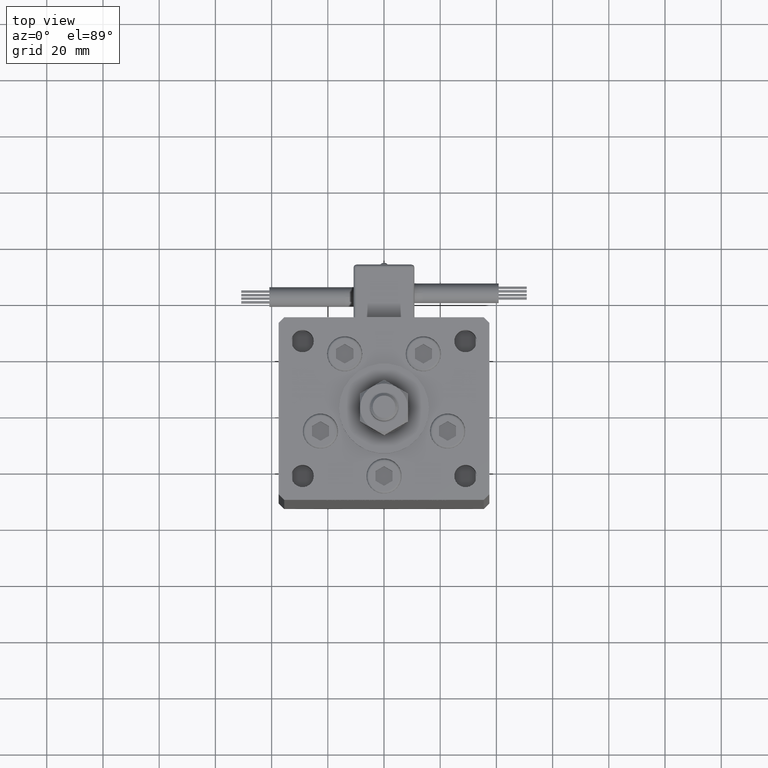
[diagram: clean part render]
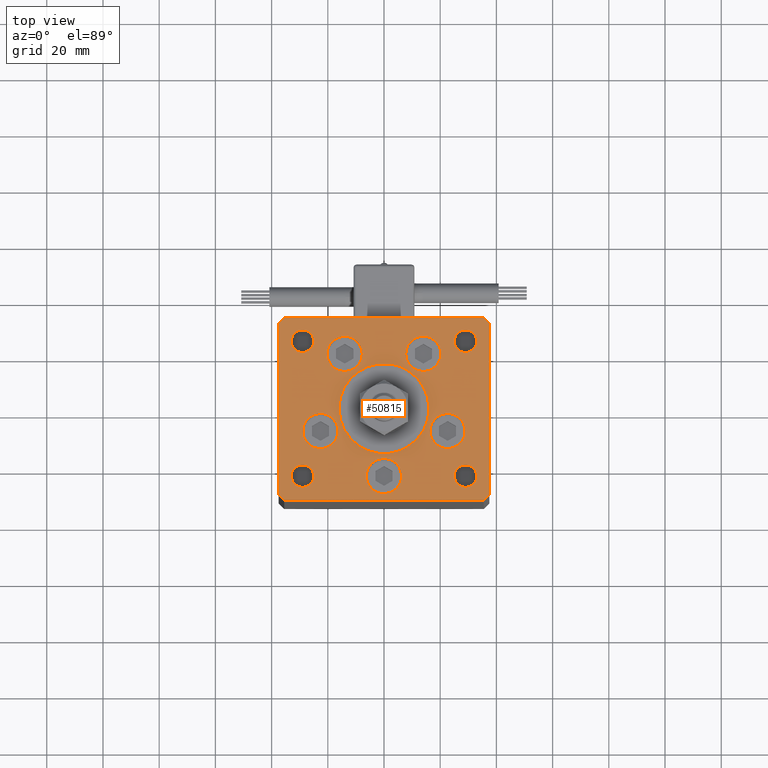
[diagram: same view with one face highlighted and labeled with its STEP entity id]
A machine part, top view. The second image highlights one B-rep face of the part: STEP entity #50815.
In plain terms, the highlighted planar face has unit normal (0, 0, 1).
Its self-contained STEP definition (entity closure, byte-faithful):
#5 = CARTESIAN_POINT ( 'NONE',  ( 0.000000000000000000, -6.938893903907228378E-15, 0.000000000000000000 ) ) ;
#13 = DIRECTION ( 'NONE',  ( 0.000000000000000000, 0.000000000000000000, 1.000000000000000000 ) ) ;
#26 = EDGE_CURVE ( 'NONE', #44111, #25029, #22153, .T. ) ;
#224 = CARTESIAN_POINT ( 'NONE',  ( 33.00000000000000000, -23.99999999999999645, 0.000000000000000000 ) ) ;
#312 = DIRECTION ( 'NONE',  ( 2.275047181608926165E-16, -1.000000000000000000, 0.000000000000000000 ) ) ;
#350 = EDGE_CURVE ( 'NONE', #43454, #55084, #13889, .T. ) ;
#573 = DIRECTION ( 'NONE',  ( -1.000000000000000000, 0.000000000000000000, 0.000000000000000000 ) ) ;
#592 = LINE ( 'NONE', #48820, #26831 ) ;
#898 = VECTOR ( 'NONE', #44611, 1000.000000000000000 ) ;
#1056 = CARTESIAN_POINT ( 'NONE',  ( -28.87741699796953654, -8.000000000000000000, 0.000000000000000000 ) ) ;
#1372 = ORIENTED_EDGE ( 'NONE', *, *, #17578, .F. ) ;
#1414 = VERTEX_POINT ( 'NONE', #1056 ) ;
#1442 = FACE_BOUND ( 'NONE', #40900, .T. ) ;
#2496 = VERTEX_POINT ( 'NONE', #8784 ) ;
#3210 = EDGE_CURVE ( 'NONE', #10264, #36532, #43233, .T. ) ;
#3530 = CARTESIAN_POINT ( 'NONE',  ( 0.000000000000000000, -24.00000000000001066, 0.000000000000000000 ) ) ;
#3818 = EDGE_LOOP ( 'NONE', ( #38268, #41297 ) ) ;
#4458 = AXIS2_PLACEMENT_3D ( 'NONE', #32172, #18955, #19236 ) ;
#4530 = CIRCLE ( 'NONE', #8211, 4.000000000000000000 ) ;
#4836 = CARTESIAN_POINT ( 'NONE',  ( -35.50000000000000711, 32.49999999999997868, 0.000000000000000000 ) ) ;
#4891 = EDGE_CURVE ( 'NONE', #25029, #44111, #20325, .T. ) ;
#5251 = ORIENTED_EDGE ( 'NONE', *, *, #6937, .T. ) ;
#5592 = CARTESIAN_POINT ( 'NONE',  ( -20.24106857963324302, 19.50000000000000000, 0.000000000000000000 ) ) ;
#5602 = CARTESIAN_POINT ( 'NONE',  ( -25.00000000000000000, 24.00000000000000711, 0.000000000000000000 ) ) ;
#5721 = DIRECTION ( 'NONE',  ( 1.000000000000000000, 0.000000000000000000, 0.000000000000000000 ) ) ;
#5991 = EDGE_LOOP ( 'NONE', ( #19318, #42592 ) ) ;
#6595 = AXIS2_PLACEMENT_3D ( 'NONE', #31028, #13507, #573 ) ;
#6823 = CARTESIAN_POINT ( 'NONE',  ( -35.50000000000001421, -32.50000000000000711, 0.000000000000000000 ) ) ;
#6937 = EDGE_CURVE ( 'NONE', #12929, #32363, #592, .T. ) ;
#7046 = CARTESIAN_POINT ( 'NONE',  ( 28.87741699796953654, -8.000000000000000000, 0.000000000000000000 ) ) ;
#7201 = DIRECTION ( 'NONE',  ( -0.000000000000000000, -0.000000000000000000, -1.000000000000000000 ) ) ;
#7346 = DIRECTION ( 'NONE',  ( 0.000000000000000000, 0.000000000000000000, 1.000000000000000000 ) ) ;
#7469 = AXIS2_PLACEMENT_3D ( 'NONE', #54271, #36790, #20120 ) ;
#7668 = EDGE_CURVE ( 'NONE', #54527, #23390, #25989, .T. ) ;
#7758 = CARTESIAN_POINT ( 'NONE',  ( 29.00000000000000355, -23.99999999999999645, 0.000000000000000000 ) ) ;
#7941 = CIRCLE ( 'NONE', #29037, 4.000000000000000000 ) ;
#8211 = AXIS2_PLACEMENT_3D ( 'NONE', #54393, #40914, #27437 ) ;
#8640 = VERTEX_POINT ( 'NONE', #26042 ) ;
#8784 = CARTESIAN_POINT ( 'NONE',  ( 35.50000000000001421, -32.49999999999992184, 0.000000000000000000 ) ) ;
#8914 = DIRECTION ( 'NONE',  ( 1.000000000000000000, 0.000000000000000000, 0.000000000000000000 ) ) ;
#9049 = CARTESIAN_POINT ( 'NONE',  ( -33.00000000000000000, 24.00000000000000711, 0.000000000000000000 ) ) ;
#9223 = FACE_BOUND ( 'NONE', #3818, .T. ) ;
#9593 = ORIENTED_EDGE ( 'NONE', *, *, #26, .T. ) ;
#9778 = FACE_BOUND ( 'NONE', #26485, .T. ) ;
#9878 = EDGE_CURVE ( 'NONE', #53461, #8640, #39730, .T. ) ;
#9891 = DIRECTION ( 'NONE',  ( -1.000000000000000000, -1.954618001100627573E-16, 0.000000000000000000 ) ) ;
#9986 = VERTEX_POINT ( 'NONE', #48291 ) ;
#10149 = CARTESIAN_POINT ( 'NONE',  ( 22.62741699796953299, -8.000000000000000000, 0.000000000000000000 ) ) ;
#10264 = VERTEX_POINT ( 'NONE', #50522 ) ;
#10314 = CARTESIAN_POINT ( 'NONE',  ( -22.62741699796953299, -8.000000000000000000, 0.000000000000000000 ) ) ;
#10344 = FACE_BOUND ( 'NONE', #32317, .T. ) ;
#10733 = LINE ( 'NONE', #15037, #41810 ) ;
#10783 = CARTESIAN_POINT ( 'NONE',  ( 7.741068579633241242, 19.50000000000000000, 0.000000000000000000 ) ) ;
#11125 = ORIENTED_EDGE ( 'NONE', *, *, #4891, .T. ) ;
#11481 = CIRCLE ( 'NONE', #44450, 6.250000000000001776 ) ;
#11850 = ORIENTED_EDGE ( 'NONE', *, *, #20821, .F. ) ;
#12266 = DIRECTION ( 'NONE',  ( 1.000000000000000000, 1.172770800660376149E-15, 0.000000000000000000 ) ) ;
#12800 = CARTESIAN_POINT ( 'NONE',  ( -37.50000000000000000, -30.50000000000004263, 0.000000000000000000 ) ) ;
#12929 = VERTEX_POINT ( 'NONE', #15988 ) ;
#13046 = CARTESIAN_POINT ( 'NONE',  ( 35.50000000000000000, 32.49999999999999289, 0.000000000000000000 ) ) ;
#13058 = EDGE_CURVE ( 'NONE', #37803, #2496, #51565, .T. ) ;
#13213 = AXIS2_PLACEMENT_3D ( 'NONE', #29023, #7201, #24713 ) ;
#13257 = CIRCLE ( 'NONE', #55389, 6.250000000000001776 ) ;
#13336 = DIRECTION ( 'NONE',  ( 1.000000000000000000, 0.000000000000000000, 0.000000000000000000 ) ) ;
#13507 = DIRECTION ( 'NONE',  ( -0.000000000000000000, -0.000000000000000000, -1.000000000000000000 ) ) ;
#13574 = EDGE_LOOP ( 'NONE', ( #52699, #47911 ) ) ;
#13801 = DIRECTION ( 'NONE',  ( -0.7071067811865524577, 0.7071067811865426878, 0.000000000000000000 ) ) ;
#13889 = CIRCLE ( 'NONE', #7469, 6.250000000000001776 ) ;
#14063 = CARTESIAN_POINT ( 'NONE',  ( 20.24106857963324302, 19.50000000000000000, 0.000000000000000000 ) ) ;
#14080 = PLANE ( 'NONE',  #4458 ) ;
#14113 = EDGE_CURVE ( 'NONE', #44411, #45833, #4530, .T. ) ;
#14357 = EDGE_CURVE ( 'NONE', #2496, #17856, #31424, .T. ) ;
#14365 = FACE_OUTER_BOUND ( 'NONE', #54709, .T. ) ;
#14574 = ORIENTED_EDGE ( 'NONE', *, *, #29373, .F. ) ;
#15037 = CARTESIAN_POINT ( 'NONE',  ( 35.50000000000000000, 32.49999999999999289, 0.000000000000000000 ) ) ;
#15200 = ORIENTED_EDGE ( 'NONE', *, *, #15453, .F. ) ;
#15298 = VERTEX_POINT ( 'NONE', #224 ) ;
#15352 = VECTOR ( 'NONE', #33247, 1000.000000000000000 ) ;
#15453 = EDGE_CURVE ( 'NONE', #49246, #1414, #41218, .T. ) ;
#15988 = CARTESIAN_POINT ( 'NONE',  ( 37.50000000000000711, 30.50000000000001421, 0.000000000000000000 ) ) ;
#16485 = AXIS2_PLACEMENT_3D ( 'NONE', #38630, #56122, #16824 ) ;
#16824 = DIRECTION ( 'NONE',  ( 1.000000000000000000, 0.000000000000000000, 0.000000000000000000 ) ) ;
#16955 = DIRECTION ( 'NONE',  ( 0.000000000000000000, 0.000000000000000000, 1.000000000000000000 ) ) ;
#17131 = ORIENTED_EDGE ( 'NONE', *, *, #22420, .T. ) ;
#17387 = DIRECTION ( 'NONE',  ( 0.7071067811865512365, -0.7071067811865439090, 0.000000000000000000 ) ) ;
#17531 = CARTESIAN_POINT ( 'NONE',  ( 0.000000000000000000, -24.00000000000001066, 0.000000000000000000 ) ) ;
#17578 = EDGE_CURVE ( 'NONE', #23390, #54527, #48643, .T. ) ;
#17750 = AXIS2_PLACEMENT_3D ( 'NONE', #52745, #31229, #26914 ) ;
#17835 = AXIS2_PLACEMENT_3D ( 'NONE', #43009, #38132, #20056 ) ;
#17856 = VERTEX_POINT ( 'NONE', #19911 ) ;
#17888 = ORIENTED_EDGE ( 'NONE', *, *, #14113, .F. ) ;
#17960 = DIRECTION ( 'NONE',  ( -0.000000000000000000, -0.000000000000000000, -1.000000000000000000 ) ) ;
#18193 = DIRECTION ( 'NONE',  ( 0.000000000000000000, 0.000000000000000000, 1.000000000000000000 ) ) ;
#18609 = CARTESIAN_POINT ( 'NONE',  ( 33.00000000000000000, 24.00000000000000355, 0.000000000000000000 ) ) ;
#18915 = AXIS2_PLACEMENT_3D ( 'NONE', #21629, #38836, #43154 ) ;
#18941 = CARTESIAN_POINT ( 'NONE',  ( -7.741068579633241242, 19.50000000000000000, 0.000000000000000000 ) ) ;
#18955 = DIRECTION ( 'NONE',  ( -0.000000000000000000, 0.000000000000000000, 1.000000000000000000 ) ) ;
#18998 = ORIENTED_EDGE ( 'NONE', *, *, #13058, .T. ) ;
#19236 = DIRECTION ( 'NONE',  ( 1.000000000000000000, 0.000000000000000000, 0.000000000000000000 ) ) ;
#19318 = ORIENTED_EDGE ( 'NONE', *, *, #3210, .F. ) ;
#19322 = DIRECTION ( 'NONE',  ( 0.000000000000000000, 0.000000000000000000, 1.000000000000000000 ) ) ;
#19492 = EDGE_CURVE ( 'NONE', #45833, #44411, #38648, .T. ) ;
#19504 = AXIS2_PLACEMENT_3D ( 'NONE', #5, #30726, #5721 ) ;
#19592 = CIRCLE ( 'NONE', #25084, 6.250000000000000000 ) ;
#19904 = CIRCLE ( 'NONE', #51997, 16.00000000000000355 ) ;
#19911 = CARTESIAN_POINT ( 'NONE',  ( 37.50000000000000711, -30.49999999999992895, 0.000000000000000000 ) ) ;
#20056 = DIRECTION ( 'NONE',  ( 1.000000000000000000, 0.000000000000000000, 0.000000000000000000 ) ) ;
#20120 = DIRECTION ( 'NONE',  ( 1.000000000000000000, 0.000000000000000000, 0.000000000000000000 ) ) ;
#20325 = CIRCLE ( 'NONE', #6595, 4.000000000000000000 ) ;
#20746 = CARTESIAN_POINT ( 'NONE',  ( -6.250000000000000000, -24.00000000000001066, 0.000000000000000000 ) ) ;
#20821 = EDGE_CURVE ( 'NONE', #8640, #53461, #55178, .T. ) ;
#21171 = DIRECTION ( 'NONE',  ( 0.000000000000000000, 0.000000000000000000, 1.000000000000000000 ) ) ;
#21256 = CARTESIAN_POINT ( 'NONE',  ( -32.99999999999999289, -23.99999999999999645, 0.000000000000000000 ) ) ;
#21282 = CARTESIAN_POINT ( 'NONE',  ( -37.50000000000000000, -30.50000000000004263, 0.000000000000000000 ) ) ;
#21629 = CARTESIAN_POINT ( 'NONE',  ( -13.99106857963324124, 19.50000000000000000, 0.000000000000000000 ) ) ;
#21740 = DIRECTION ( 'NONE',  ( 1.000000000000000000, 0.000000000000000000, 0.000000000000000000 ) ) ;
#22065 = ORIENTED_EDGE ( 'NONE', *, *, #19492, .F. ) ;
#22153 = CIRCLE ( 'NONE', #51457, 4.000000000000000000 ) ;
#22420 = EDGE_CURVE ( 'NONE', #25082, #48016, #39634, .T. ) ;
#22428 = FACE_BOUND ( 'NONE', #33617, .T. ) ;
#22616 = LINE ( 'NONE', #4836, #52137 ) ;
#23240 = DIRECTION ( 'NONE',  ( 1.000000000000000000, 0.000000000000000000, 0.000000000000000000 ) ) ;
#23390 = VERTEX_POINT ( 'NONE', #30515 ) ;
#23555 = EDGE_CURVE ( 'NONE', #26392, #56615, #19592, .T. ) ;
#24569 = DIRECTION ( 'NONE',  ( 1.000000000000000000, 0.000000000000000000, 0.000000000000000000 ) ) ;
#24713 = DIRECTION ( 'NONE',  ( -1.000000000000000000, 0.000000000000000000, 0.000000000000000000 ) ) ;
#24812 = EDGE_LOOP ( 'NONE', ( #11850, #46223 ) ) ;
#24914 = CARTESIAN_POINT ( 'NONE',  ( 37.50000000000000711, -30.49999999999992895, 0.000000000000000000 ) ) ;
#25029 = VERTEX_POINT ( 'NONE', #9049 ) ;
#25082 = VERTEX_POINT ( 'NONE', #52678 ) ;
#25084 = AXIS2_PLACEMENT_3D ( 'NONE', #38197, #16955, #38476 ) ;
#25166 = VERTEX_POINT ( 'NONE', #5592 ) ;
#25266 = DIRECTION ( 'NONE',  ( -0.000000000000000000, -0.000000000000000000, -1.000000000000000000 ) ) ;
#25495 = EDGE_CURVE ( 'NONE', #15298, #40808, #37958, .T. ) ;
#25500 = CARTESIAN_POINT ( 'NONE',  ( 25.00000000000000355, -23.99999999999999645, 0.000000000000000000 ) ) ;
#25654 = EDGE_CURVE ( 'NONE', #1414, #49246, #13257, .T. ) ;
#25989 = CIRCLE ( 'NONE', #44287, 3.999999999999996447 ) ;
#26042 = CARTESIAN_POINT ( 'NONE',  ( 6.250000000000000000, -24.00000000000001066, 0.000000000000000000 ) ) ;
#26392 = VERTEX_POINT ( 'NONE', #14063 ) ;
#26485 = EDGE_LOOP ( 'NONE', ( #9593, #11125 ) ) ;
#26748 = ORIENTED_EDGE ( 'NONE', *, *, #46811, .T. ) ;
#26756 = EDGE_CURVE ( 'NONE', #56615, #26392, #26884, .T. ) ;
#26831 = VECTOR ( 'NONE', #13801, 1000.000000000000000 ) ;
#26884 = CIRCLE ( 'NONE', #17750, 6.250000000000000000 ) ;
#26914 = DIRECTION ( 'NONE',  ( 1.000000000000000000, 0.000000000000000000, 0.000000000000000000 ) ) ;
#27133 = CARTESIAN_POINT ( 'NONE',  ( 29.00000000000000000, 24.00000000000000355, 0.000000000000000000 ) ) ;
#27437 = DIRECTION ( 'NONE',  ( 1.000000000000000000, 0.000000000000000000, 0.000000000000000000 ) ) ;
#27592 = AXIS2_PLACEMENT_3D ( 'NONE', #50673, #46370, #24569 ) ;
#28495 = CARTESIAN_POINT ( 'NONE',  ( 16.00000000000000355, -4.979459025271462852E-15, 0.000000000000000000 ) ) ;
#29023 = CARTESIAN_POINT ( 'NONE',  ( 29.00000000000000355, -23.99999999999999645, 0.000000000000000000 ) ) ;
#29037 = AXIS2_PLACEMENT_3D ( 'NONE', #7758, #25266, #39574 ) ;
#29373 = EDGE_CURVE ( 'NONE', #25166, #33723, #55387, .T. ) ;
#30515 = CARTESIAN_POINT ( 'NONE',  ( -25.00000000000000355, -23.99999999999999645, 0.000000000000000000 ) ) ;
#30726 = DIRECTION ( 'NONE',  ( 0.000000000000000000, 0.000000000000000000, 1.000000000000000000 ) ) ;
#30884 = DIRECTION ( 'NONE',  ( 1.000000000000000000, 0.000000000000000000, 0.000000000000000000 ) ) ;
#31028 = CARTESIAN_POINT ( 'NONE',  ( -29.00000000000000000, 24.00000000000000711, 0.000000000000000000 ) ) ;
#31165 = DIRECTION ( 'NONE',  ( 0.000000000000000000, 0.000000000000000000, 1.000000000000000000 ) ) ;
#31229 = DIRECTION ( 'NONE',  ( 0.000000000000000000, 0.000000000000000000, 1.000000000000000000 ) ) ;
#31424 = LINE ( 'NONE', #40301, #898 ) ;
#31657 = ORIENTED_EDGE ( 'NONE', *, *, #41305, .T. ) ;
#31887 = FACE_BOUND ( 'NONE', #55579, .T. ) ;
#32172 = CARTESIAN_POINT ( 'NONE',  ( 0.000000000000000000, 0.000000000000000000, 0.000000000000000000 ) ) ;
#32317 = EDGE_LOOP ( 'NONE', ( #1372, #37679 ) ) ;
#32363 = VERTEX_POINT ( 'NONE', #13046 ) ;
#32402 = EDGE_CURVE ( 'NONE', #55084, #43454, #11481, .T. ) ;
#33247 = DIRECTION ( 'NONE',  ( 0.000000000000000000, 1.000000000000000000, 0.000000000000000000 ) ) ;
#33617 = EDGE_LOOP ( 'NONE', ( #15200, #47047 ) ) ;
#33723 = VERTEX_POINT ( 'NONE', #18941 ) ;
#35204 = CARTESIAN_POINT ( 'NONE',  ( -29.00000000000000000, 24.00000000000000711, 0.000000000000000000 ) ) ;
#35541 = DIRECTION ( 'NONE',  ( -0.7071067811865524577, -0.7071067811865426878, 0.000000000000000000 ) ) ;
#35887 = CARTESIAN_POINT ( 'NONE',  ( -16.37741699796953299, -8.000000000000000000, 0.000000000000000000 ) ) ;
#36532 = VERTEX_POINT ( 'NONE', #28495 ) ;
#36790 = DIRECTION ( 'NONE',  ( 0.000000000000000000, 0.000000000000000000, 1.000000000000000000 ) ) ;
#37175 = EDGE_CURVE ( 'NONE', #36532, #10264, #19904, .T. ) ;
#37514 = CARTESIAN_POINT ( 'NONE',  ( -35.50000000000001421, -32.50000000000000711, 0.000000000000000000 ) ) ;
#37679 = ORIENTED_EDGE ( 'NONE', *, *, #7668, .F. ) ;
#37803 = VERTEX_POINT ( 'NONE', #6823 ) ;
#37901 = EDGE_CURVE ( 'NONE', #17856, #12929, #42126, .T. ) ;
#37958 = CIRCLE ( 'NONE', #13213, 4.000000000000000000 ) ;
#38132 = DIRECTION ( 'NONE',  ( 0.000000000000000000, 0.000000000000000000, 1.000000000000000000 ) ) ;
#38197 = CARTESIAN_POINT ( 'NONE',  ( 13.99106857963324124, 19.50000000000000000, 0.000000000000000000 ) ) ;
#38268 = ORIENTED_EDGE ( 'NONE', *, *, #32402, .F. ) ;
#38476 = DIRECTION ( 'NONE',  ( 1.000000000000000000, 0.000000000000000000, 0.000000000000000000 ) ) ;
#38630 = CARTESIAN_POINT ( 'NONE',  ( -22.62741699796953299, -8.000000000000000000, 0.000000000000000000 ) ) ;
#38648 = CIRCLE ( 'NONE', #41386, 4.000000000000000000 ) ;
#38836 = DIRECTION ( 'NONE',  ( 0.000000000000000000, 0.000000000000000000, 1.000000000000000000 ) ) ;
#39574 = DIRECTION ( 'NONE',  ( -1.000000000000000000, 0.000000000000000000, 0.000000000000000000 ) ) ;
#39634 = LINE ( 'NONE', #55488, #44298 ) ;
#39730 = CIRCLE ( 'NONE', #42495, 6.250000000000000000 ) ;
#40301 = CARTESIAN_POINT ( 'NONE',  ( 35.50000000000001421, -32.49999999999992184, 0.000000000000000000 ) ) ;
#40808 = VERTEX_POINT ( 'NONE', #25500 ) ;
#40900 = EDGE_LOOP ( 'NONE', ( #43303, #46604 ) ) ;
#40914 = DIRECTION ( 'NONE',  ( 0.000000000000000000, 0.000000000000000000, 1.000000000000000000 ) ) ;
#41218 = CIRCLE ( 'NONE', #16485, 6.250000000000001776 ) ;
#41297 = ORIENTED_EDGE ( 'NONE', *, *, #350, .F. ) ;
#41305 = EDGE_CURVE ( 'NONE', #32363, #9986, #10733, .T. ) ;
#41381 = EDGE_CURVE ( 'NONE', #33723, #25166, #46399, .T. ) ;
#41386 = AXIS2_PLACEMENT_3D ( 'NONE', #27133, #31165, #30884 ) ;
#41810 = VECTOR ( 'NONE', #9891, 1000.000000000000000 ) ;
#42126 = LINE ( 'NONE', #24914, #15352 ) ;
#42495 = AXIS2_PLACEMENT_3D ( 'NONE', #3530, #54876, #42566 ) ;
#42566 = DIRECTION ( 'NONE',  ( 1.000000000000000000, 0.000000000000000000, 0.000000000000000000 ) ) ;
#42592 = ORIENTED_EDGE ( 'NONE', *, *, #37175, .F. ) ;
#43009 = CARTESIAN_POINT ( 'NONE',  ( -13.99106857963324124, 19.50000000000000000, 0.000000000000000000 ) ) ;
#43137 = VECTOR ( 'NONE', #12266, 1000.000000000000000 ) ;
#43154 = DIRECTION ( 'NONE',  ( 1.000000000000000000, 0.000000000000000000, 0.000000000000000000 ) ) ;
#43233 = CIRCLE ( 'NONE', #19504, 16.00000000000000355 ) ;
#43303 = ORIENTED_EDGE ( 'NONE', *, *, #25495, .T. ) ;
#43454 = VERTEX_POINT ( 'NONE', #44539 ) ;
#44111 = VERTEX_POINT ( 'NONE', #5602 ) ;
#44287 = AXIS2_PLACEMENT_3D ( 'NONE', #51859, #21171, #21740 ) ;
#44298 = VECTOR ( 'NONE', #312, 1000.000000000000000 ) ;
#44411 = VERTEX_POINT ( 'NONE', #48043 ) ;
#44450 = AXIS2_PLACEMENT_3D ( 'NONE', #10149, #19322, #54036 ) ;
#44503 = FACE_BOUND ( 'NONE', #24812, .T. ) ;
#44539 = CARTESIAN_POINT ( 'NONE',  ( 16.37741699796953299, -8.000000000000000000, 0.000000000000000000 ) ) ;
#44611 = DIRECTION ( 'NONE',  ( 0.7071067811865463515, 0.7071067811865487940, 0.000000000000000000 ) ) ;
#44634 = DIRECTION ( 'NONE',  ( -1.000000000000000000, 0.000000000000000000, 0.000000000000000000 ) ) ;
#45833 = VERTEX_POINT ( 'NONE', #18609 ) ;
#45845 = EDGE_LOOP ( 'NONE', ( #22065, #17888 ) ) ;
#46223 = ORIENTED_EDGE ( 'NONE', *, *, #9878, .F. ) ;
#46370 = DIRECTION ( 'NONE',  ( 0.000000000000000000, 0.000000000000000000, 1.000000000000000000 ) ) ;
#46399 = CIRCLE ( 'NONE', #18915, 6.250000000000000000 ) ;
#46579 = EDGE_CURVE ( 'NONE', #40808, #15298, #7941, .T. ) ;
#46604 = ORIENTED_EDGE ( 'NONE', *, *, #46579, .T. ) ;
#46811 = EDGE_CURVE ( 'NONE', #48016, #37803, #52110, .T. ) ;
#47047 = ORIENTED_EDGE ( 'NONE', *, *, #25654, .F. ) ;
#47911 = ORIENTED_EDGE ( 'NONE', *, *, #26756, .F. ) ;
#48016 = VERTEX_POINT ( 'NONE', #21282 ) ;
#48043 = CARTESIAN_POINT ( 'NONE',  ( 24.99999999999999645, 24.00000000000000355, 0.000000000000000000 ) ) ;
#48291 = CARTESIAN_POINT ( 'NONE',  ( -35.50000000000000711, 32.49999999999997868, 0.000000000000000000 ) ) ;
#48643 = CIRCLE ( 'NONE', #27592, 3.999999999999996447 ) ;
#48814 = FACE_BOUND ( 'NONE', #13574, .T. ) ;
#48820 = CARTESIAN_POINT ( 'NONE',  ( 37.50000000000000711, 30.50000000000001421, 0.000000000000000000 ) ) ;
#48896 = CARTESIAN_POINT ( 'NONE',  ( 0.000000000000000000, -6.938893903907228378E-15, 0.000000000000000000 ) ) ;
#49246 = VERTEX_POINT ( 'NONE', #35887 ) ;
#50074 = ORIENTED_EDGE ( 'NONE', *, *, #52578, .T. ) ;
#50522 = CARTESIAN_POINT ( 'NONE',  ( -16.00000000000000355, -6.938893903907228378E-15, 0.000000000000000000 ) ) ;
#50673 = CARTESIAN_POINT ( 'NONE',  ( -29.00000000000000000, -23.99999999999999645, 0.000000000000000000 ) ) ;
#50815 = ADVANCED_FACE ( 'NONE', ( #51996, #31887, #48814, #9223, #44503, #22428, #9778, #53954, #10344, #14365, #1442 ), #14080, .T. ) ;
#51059 = ORIENTED_EDGE ( 'NONE', *, *, #14357, .T. ) ;
#51148 = ORIENTED_EDGE ( 'NONE', *, *, #37901, .T. ) ;
#51457 = AXIS2_PLACEMENT_3D ( 'NONE', #35204, #17960, #44634 ) ;
#51565 = LINE ( 'NONE', #37514, #43137 ) ;
#51859 = CARTESIAN_POINT ( 'NONE',  ( -29.00000000000000000, -23.99999999999999645, 0.000000000000000000 ) ) ;
#51996 = FACE_BOUND ( 'NONE', #5991, .T. ) ;
#51997 = AXIS2_PLACEMENT_3D ( 'NONE', #48896, #18193, #13336 ) ;
#52110 = LINE ( 'NONE', #12800, #54663 ) ;
#52137 = VECTOR ( 'NONE', #35541, 1000.000000000000000 ) ;
#52578 = EDGE_CURVE ( 'NONE', #9986, #25082, #22616, .T. ) ;
#52599 = ORIENTED_EDGE ( 'NONE', *, *, #41381, .F. ) ;
#52678 = CARTESIAN_POINT ( 'NONE',  ( -37.50000000000001421, 30.50000000000000000, 0.000000000000000000 ) ) ;
#52699 = ORIENTED_EDGE ( 'NONE', *, *, #23555, .F. ) ;
#52745 = CARTESIAN_POINT ( 'NONE',  ( 13.99106857963324124, 19.50000000000000000, 0.000000000000000000 ) ) ;
#53343 = AXIS2_PLACEMENT_3D ( 'NONE', #17531, #13, #8914 ) ;
#53461 = VERTEX_POINT ( 'NONE', #20746 ) ;
#53954 = FACE_BOUND ( 'NONE', #45845, .T. ) ;
#54036 = DIRECTION ( 'NONE',  ( 1.000000000000000000, 0.000000000000000000, 0.000000000000000000 ) ) ;
#54271 = CARTESIAN_POINT ( 'NONE',  ( 22.62741699796953299, -8.000000000000000000, 0.000000000000000000 ) ) ;
#54393 = CARTESIAN_POINT ( 'NONE',  ( 29.00000000000000000, 24.00000000000000355, 0.000000000000000000 ) ) ;
#54527 = VERTEX_POINT ( 'NONE', #21256 ) ;
#54663 = VECTOR ( 'NONE', #17387, 1000.000000000000000 ) ;
#54709 = EDGE_LOOP ( 'NONE', ( #26748, #18998, #51059, #51148, #5251, #31657, #50074, #17131 ) ) ;
#54876 = DIRECTION ( 'NONE',  ( 0.000000000000000000, 0.000000000000000000, 1.000000000000000000 ) ) ;
#55084 = VERTEX_POINT ( 'NONE', #7046 ) ;
#55178 = CIRCLE ( 'NONE', #53343, 6.250000000000000000 ) ;
#55387 = CIRCLE ( 'NONE', #17835, 6.250000000000000000 ) ;
#55389 = AXIS2_PLACEMENT_3D ( 'NONE', #10314, #7346, #23240 ) ;
#55488 = CARTESIAN_POINT ( 'NONE',  ( -37.50000000000001421, 30.50000000000000000, 0.000000000000000000 ) ) ;
#55579 = EDGE_LOOP ( 'NONE', ( #52599, #14574 ) ) ;
#56122 = DIRECTION ( 'NONE',  ( 0.000000000000000000, 0.000000000000000000, 1.000000000000000000 ) ) ;
#56615 = VERTEX_POINT ( 'NONE', #10783 ) ;